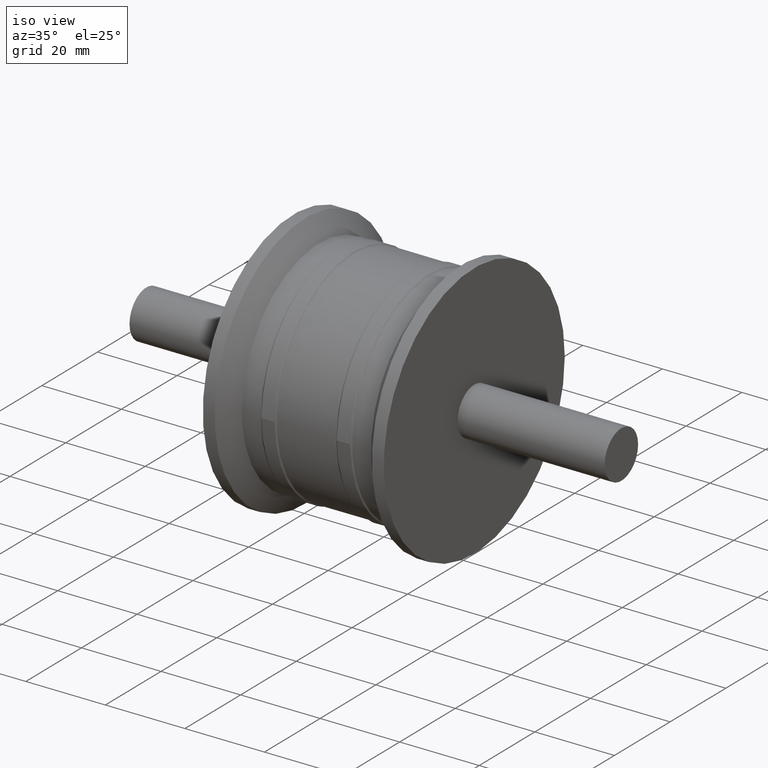
[diagram: clean part render]
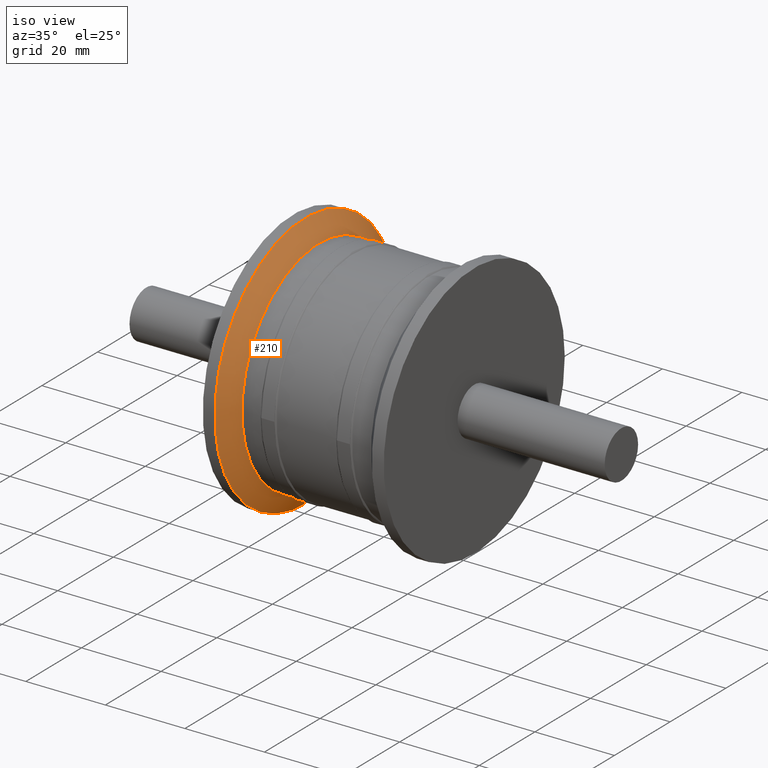
[diagram: same view with one face highlighted and labeled with its STEP entity id]
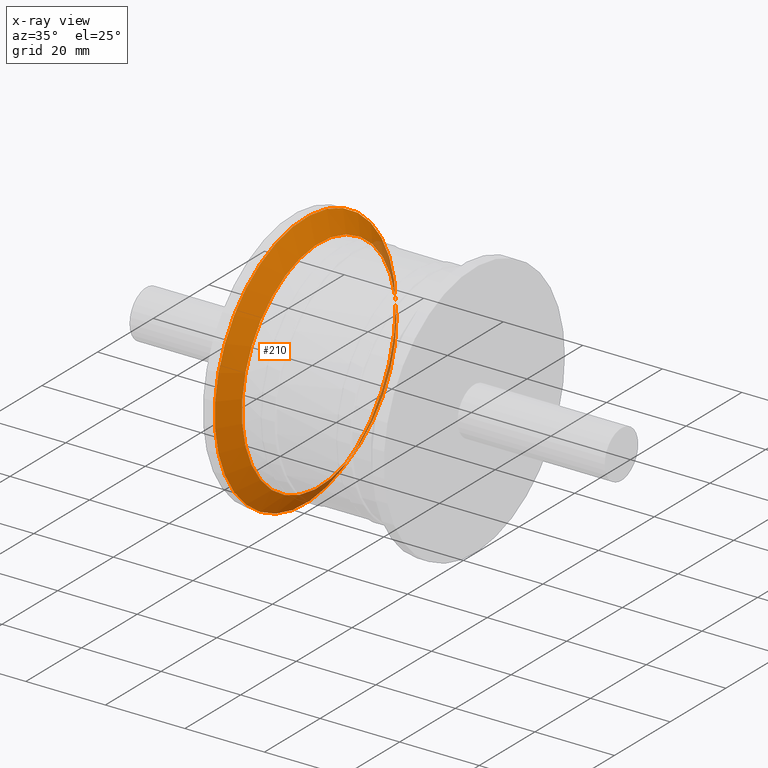
[diagram: x-ray of the same camera — body ghosted, the highlighted face saturated]
A machine part, iso view. The second image highlights one B-rep face of the part: STEP entity #210.
The next image is the same camera in x-ray: the body ghosted, the highlighted face saturated — about 7% of this face is hidden behind the body in this view.
In plain terms, the highlighted conical surface has half-angle 53.616 deg.
Its self-contained STEP definition (entity closure, byte-faithful):
#16=CONICAL_SURFACE('',#247,30.125,53.615648184164);
#43=FACE_BOUND('',#94,.T.);
#61=FACE_OUTER_BOUND('',#93,.T.);
#93=EDGE_LOOP('',(#183));
#94=EDGE_LOOP('',(#184));
#117=CIRCLE('',#246,32.5);
#118=CIRCLE('',#248,27.75);
#135=VERTEX_POINT('',#375);
#136=VERTEX_POINT('',#378);
#153=EDGE_CURVE('',#135,#135,#117,.T.);
#154=EDGE_CURVE('',#136,#136,#118,.T.);
#183=ORIENTED_EDGE('',*,*,#153,.T.);
#184=ORIENTED_EDGE('',*,*,#154,.F.);
#210=ADVANCED_FACE('',(#61,#43),#16,.T.);
#246=AXIS2_PLACEMENT_3D('',#376,#314,#315);
#247=AXIS2_PLACEMENT_3D('',#377,#316,#317);
#248=AXIS2_PLACEMENT_3D('',#379,#318,#319);
#314=DIRECTION('center_axis',(1.,3.16459002187477E-16,0.));
#315=DIRECTION('ref_axis',(0.,0.,-1.));
#316=DIRECTION('center_axis',(-1.,-3.16459002187477E-16,0.));
#317=DIRECTION('ref_axis',(-3.16459002187477E-16,1.,0.));
#318=DIRECTION('center_axis',(1.,3.16459002187477E-16,0.));
#319=DIRECTION('ref_axis',(0.,0.,-1.));
#375=CARTESIAN_POINT('',(-19.75,32.5,0.));
#376=CARTESIAN_POINT('Origin',(-19.75,-6.25006529320267E-15,0.));
#377=CARTESIAN_POINT('Origin',(-18.,-5.69626203937459E-15,0.));
#378=CARTESIAN_POINT('',(-16.25,27.75,0.));
#379=CARTESIAN_POINT('Origin',(-16.25,-5.1424587855465E-15,0.));